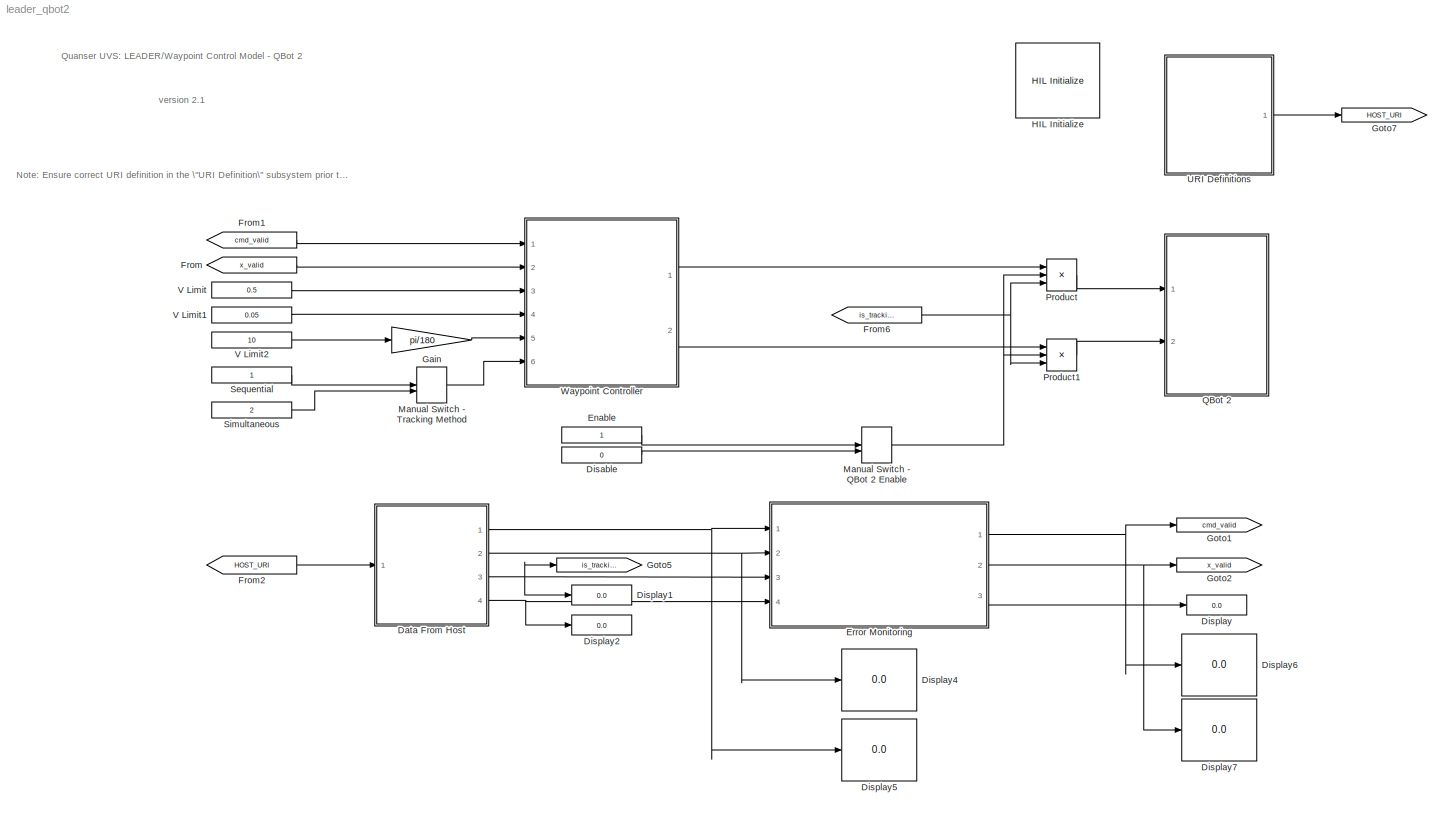
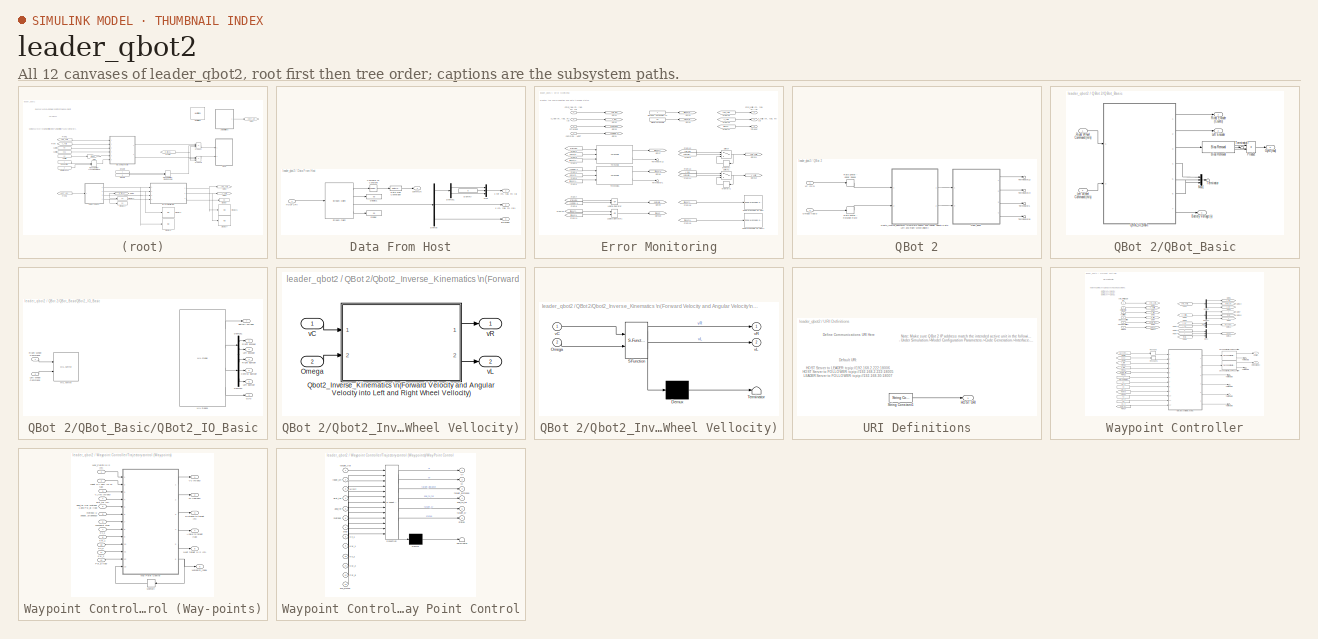
[diagram: thumbnail index - all 12 canvases of the model, root first then tree order]
MODEL leader_qbot2
KIND model
BLOCK [SubSystem] Data From Host
  Ports = [1, 4]
  RequestExecContextInheritance = off
  SID = 46
BLOCK [Reference] Data From Host/Compare To Constant  REF=simulink/Logic and Bit\nOperations/Compare\nTo Constant
  OutDataTypeStr = boolean
  Ports = [1, 1]
  SID = 379
  SourceBlock = simulink/Logic and Bit\nOperations/Compare\nTo Constant
  SourceType = Compare To Constant
  ZeroCross = on
  const = 2
  relop = <=
BLOCK [DataTypeConversion] Data From Host/Data Type Conversion
  RndMeth = Floor
  SID = 380
  SaturateOnIntegerOverflow = off
BLOCK [Demux] Data From Host/Demux
  DisplayOption = bar
  Outputs = [2 3 1]
  Ports = [1, 3]
  SID = 64
BLOCK [Demux] Data From Host/Demux1
  DisplayOption = bar
  Outputs = 2
  Ports = [1, 2]
  SID = 432
BLOCK [Display] Data From Host/Display
  Decimation = 100
  Ports = [1]
  SID = 62
BLOCK [Display] Data From Host/Display1
  Decimation = 100
  Ports = [1]
  SID = 63
BLOCK [Constant] Data From Host/Dummy
  SID = 434
  Value = 0
BLOCK [Inport] Data From Host/HOST URI
  IconDisplay = Port number
  SID = 60
BLOCK [Mux] Data From Host/Mux
  DisplayOption = bar
  Inputs = 3
  Ports = [3, 1]
  SID = 433
BLOCK [Reference] Data From Host/Stream Client  REF=quarc_library/Communications/Basic/Stream Client
  Ports = [1, 4]
  SID = 61
  SourceBlock = quarc_library/Communications/Basic/Stream Client
  SourceType = Stream Client
  active = off
  apply_uri_to_all_configs = on
  byte_order = little endian (Intel - LSB first)
  data_type = Inherited via back propagation
  default_value = zeros(6,1)
  implementation = Use non-blocking I/O
  max_dimensions = -1
  optimization = Minimum latency
  receive_buffer_size = 1460
  receive_dimensions = off
  receive_fifo_size = 1000
  receive_options = Receive most recent data
  receive_priority = 0
  sample_time = qc_get_step_size
  send_buffer_size = 1460
  send_dimensions = off
  send_fifo_size = 1000
  send_options = Do not send data
  send_priority = 0
  type_expr = BusObject
  uri = tcpip://182.168.2.222:18006
  uri_source = External input port
BLOCK [Outport] Data From Host/commOK
  IconDisplay = Port number
  Port = 4
  SID = 65
BLOCK [Outport] Data From Host/isTracking
  IconDisplay = Port number
  Port = 3
  SID = 50
BLOCK [Outport] Data From Host/x  ref (m, rad, m) [3]
  IconDisplay = Port number
  SID = 49
BLOCK [Outport] Data From Host/x (m, rad, m) [3]1
  IconDisplay = Port number
  Port = 2
  SID = 431
BLOCK [Constant] Disable
  SID = 220
  Value = 0
BLOCK [Display] Display
  Decimation = 100
  Ports = [1]
  SID = 230
BLOCK [Display] Display1
  Decimation = 100
  Ports = [1]
  SID = 231
BLOCK [Display] Display2
  Decimation = 100
  Ports = [1]
  SID = 232
BLOCK [Display] Display4
  Decimation = 100
  Ports = [1]
  SID = 381
BLOCK [Display] Display5
  Decimation = 100
  Ports = [1]
  SID = 382
BLOCK [Display] Display6
  Decimation = 100
  Ports = [1]
  SID = 383
BLOCK [Display] Display7
  Decimation = 100
  Ports = [1]
  SID = 384
BLOCK [Constant] Enable
  SID = 219
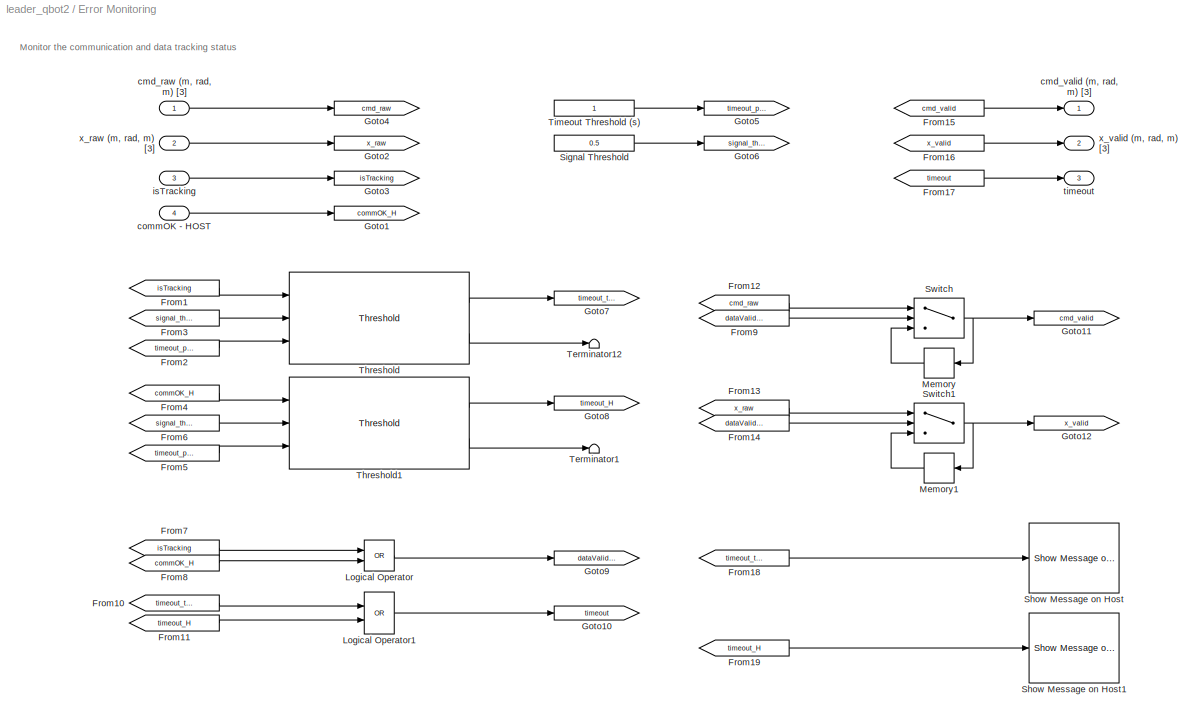
BLOCK [SubSystem] Error Monitoring
  Ports = [4, 3]
  RequestExecContextInheritance = off
  SID = 71
BLOCK [From] Error Monitoring/From1
  GotoTag = isTracking
  SID = 86
BLOCK [From] Error Monitoring/From10
  GotoTag = timeout_tracking
  SID = 109
BLOCK [From] Error Monitoring/From11
  GotoTag = timeout_H
  SID = 110
BLOCK [From] Error Monitoring/From12
  GotoTag = cmd_raw
  SID = 113
BLOCK [From] Error Monitoring/From13
  GotoTag = x_raw
  SID = 116
BLOCK [From] Error Monitoring/From14
  GotoTag = dataValid_H
  SID = 117
BLOCK [From] Error Monitoring/From15
  GotoTag = cmd_valid
  SID = 122
BLOCK [From] Error Monitoring/From16
  GotoTag = x_valid
  SID = 123
BLOCK [From] Error Monitoring/From17
  GotoTag = timeout
  SID = 224
BLOCK [From] Error Monitoring/From18
  GotoTag = timeout_tracking
  SID = 227
BLOCK [From] Error Monitoring/From19
  GotoTag = timeout_H
  SID = 228
BLOCK [From] Error Monitoring/From2
  GotoTag = timeout_period
  SID = 91
BLOCK [From] Error Monitoring/From3
  GotoTag = signal_threshold
  SID = 94
BLOCK [From] Error Monitoring/From4
  GotoTag = commOK_H
  SID = 95
BLOCK [From] Error Monitoring/From5
  GotoTag = timeout_period
  SID = 96
BLOCK [From] Error Monitoring/From6
  GotoTag = signal_threshold
  SID = 97
BLOCK [From] Error Monitoring/From7
  GotoTag = isTracking
  SID = 103
BLOCK [From] Error Monitoring/From8
  GotoTag = commOK_H
  SID = 104
BLOCK [From] Error Monitoring/From9
  GotoTag = dataValid_H
  SID = 108
BLOCK [Goto] Error Monitoring/Goto1
  GotoTag = commOK_H
  SID = 79
BLOCK [Goto] Error Monitoring/Goto10
  GotoTag = timeout
  SID = 111
BLOCK [Goto] Error Monitoring/Goto11
  GotoTag = cmd_valid
  SID = 120
BLOCK [Goto] Error Monitoring/Goto12
  GotoTag = x_valid
  SID = 121
BLOCK [Goto] Error Monitoring/Goto2
  GotoTag = x_raw
  SID = 80
BLOCK [Goto] Error Monitoring/Goto3
  GotoTag = isTracking
  SID = 78
BLOCK [Goto] Error Monitoring/Goto4
  GotoTag = cmd_raw
  SID = 81
BLOCK [Goto] Error Monitoring/Goto5
  GotoTag = timeout_period
  SID = 90
BLOCK [Goto] Error Monitoring/Goto6
  GotoTag = signal_threshold
  SID = 93
BLOCK [Goto] Error Monitoring/Goto7
  GotoTag = timeout_tracking
  SID = 100
BLOCK [Goto] Error Monitoring/Goto8
  GotoTag = timeout_H
  SID = 101
BLOCK [Goto] Error Monitoring/Goto9
  GotoTag = dataValid_H
  SID = 106
BLOCK [Logic] Error Monitoring/Logical Operator
  AllPortsSameDT = off
  Operator = OR
  OutDataTypeStr = boolean
  Ports = [2, 1]
  SID = 102
BLOCK [Logic] Error Monitoring/Logical Operator1
  AllPortsSameDT = off
  Operator = OR
  OutDataTypeStr = boolean
  Ports = [2, 1]
  SID = 112
BLOCK [Memory] Error Monitoring/Memory
  SID = 115
BLOCK [Memory] Error Monitoring/Memory1
  SID = 118
BLOCK [Reference] Error Monitoring/Show Message on Host  REF=quarc_library/Sinks/Error Handling/Show Message on Host
  AttributesFormatString = \"%<message>\"
  Ports = [1]
  SID = 226
  SourceBlock = quarc_library/Sinks/Error Handling/Show Message on Host
  SourceType = Host Show Message
  message = OptiTrack Not Tracking Markers!
  message_icon = Warning
  message_type = Fixed error message
BLOCK [Reference] Error Monitoring/Show Message on Host1  REF=quarc_library/Sinks/Error Handling/Show Message on Host
  AttributesFormatString = \"%<message>\"
  Ports = [1]
  SID = 229
  SourceBlock = quarc_library/Sinks/Error Handling/Show Message on Host
  SourceType = Host Show Message
  message = Host connection timeout detected!
  message_icon = Warning
  message_type = Fixed error message
BLOCK [Constant] Error Monitoring/Signal Threshold
  SID = 92
  Value = 0.5
BLOCK [Switch] Error Monitoring/Switch
  InputSameDT = off
  SID = 107
  SaturateOnIntegerOverflow = off
  Threshold = 0.5
BLOCK [Switch] Error Monitoring/Switch1
  InputSameDT = off
  SID = 119
  SaturateOnIntegerOverflow = off
  Threshold = 0.5
BLOCK [Terminator] Error Monitoring/Terminator1
  SID = 99
BLOCK [Terminator] Error Monitoring/Terminator12
  SID = 98
BLOCK [Reference] Error Monitoring/Threshold  REF=quarc_library/Discontinuities/Threshold
  Ports = [3, 2]
  SID = 85
  SourceBlock = quarc_library/Discontinuities/Threshold
  SourceType = Threshold
  duration = 0
  operator = <
  param_src = External input port
  threshold = 0
BLOCK [Reference] Error Monitoring/Threshold1  REF=quarc_library/Discontinuities/Threshold
  Ports = [3, 2]
  SID = 87
  SourceBlock = quarc_library/Discontinuities/Threshold
  SourceType = Threshold
  duration = 0
  operator = <
  param_src = External input port
  threshold = 0
BLOCK [Constant] Error Monitoring/Timeout Threshold (s)
  SID = 88
BLOCK [Inport] Error Monitoring/cmd_raw (m, rad, m) [3]
  IconDisplay = Port number
  SID = 72
BLOCK [Outport] Error Monitoring/cmd_valid (m, rad, m) [3]
  IconDisplay = Port number
  SID = 73
BLOCK [Inport] Error Monitoring/commOK - HOST
  IconDisplay = Port number
  Port = 4
  SID = 76
BLOCK [Inport] Error Monitoring/isTracking
  IconDisplay = Port number
  Port = 3
  SID = 75
BLOCK [Outport] Error Monitoring/timeout
  IconDisplay = Port number
  Port = 3
  SID = 225
BLOCK [Inport] Error Monitoring/x_raw (m, rad, m) [3]
  IconDisplay = Port number
  Port = 2
  SID = 74
BLOCK [Outport] Error Monitoring/x_valid (m, rad, m) [3]
  IconDisplay = Port number
  Port = 2
  SID = 77
BLOCK [From] From
  GotoTag = x_valid
  SID = 44
BLOCK [From] From1
  GotoTag = cmd_valid
  SID = 45
BLOCK [From] From2
  GotoTag = HOST_URI
  SID = 66
BLOCK [From] From6
  GotoTag = is_tracking
  SID = 387
BLOCK [Gain] Gain
  Gain = pi/180
  OutDataTypeStr = Inherit: Inherit via internal rule
  ParamDataTypeStr = Inherit: Inherit via internal rule
  SID = 214
  SaturateOnIntegerOverflow = off
BLOCK [Goto] Goto1
  GotoTag = cmd_valid
  SID = 82
BLOCK [Goto] Goto2
  GotoTag = x_valid
  SID = 83
BLOCK [Goto] Goto5
  GotoTag = is_tracking
  SID = 386
BLOCK [Goto] Goto7
  GotoTag = HOST_URI
  SID = 59
BLOCK [Reference] HIL Initialize  REF=quarc_library/Data Acquisition/Generic/Configuration/HIL Initialize
  AttributesFormatString = %<object_name> (%<board_type>-%<board_number>)
  Ports = []
  Priority = -99
  SID = 2
  SourceBlock = quarc_library/Data Acquisition/Generic/Configuration/HIL Initialize
  SourceType = HIL Initialize
  UserData = DataTag0
  UserDataPersistent = on
  active = off
  analog_input_channels = [0:9]
  analog_input_maximums = [5 5 5 5 16.5 3.3 3.3 3.3 3.3]
  analog_input_minimums = [0 0 0 0 0 0 0 0 0]
  analog_output_channels = []
  analog_output_maximums = []
  analog_output_minimums = []
  board_number = 0
  board_options = enc0_dir=0;enc0_filter=1;enc0_a=0;enc0_b=0;enc0_z=1;enc0_reload=0;enc1_dir=0;enc1_filter=1;enc1_a=0;enc1_b=0;enc1_z=1;enc1_reload=0;pwm0_immediate=0;pwm1_immediate=0;pwm2_immediate=0;pwm3_immediate=0;
  board_type = qbot2
  clock_modes = []
  digital_input_channels = []
  digital_output_channels = []
  digital_output_configuration = []
  encoder_channels = [0:3]
  encoder_filter_frequency = []
  exclusive = off
  final_analog_outputs = []
  final_digital_outputs = [0]
  final_other_outputs = [0 0 0 7]
  final_pwm_outputs = [0]
  hardware_clocks = []
  initial_analog_outputs = []
  initial_clock_frequencies = []
  initial_digital_outputs = [0]
  initial_encoder_counts = [0]
  initial_other_outputs = [0 0 0 7]
  initial_pwm_outputs = [0]
  object_name = HIL-1
  other_output_channels = [2000:2001 14000 16000]
  pwm_alignment = [0]
  pwm_channels = [0:3]
  pwm_configuration = [0]
  pwm_frequency = [20e6/1024]
  pwm_leading_deadband = [0]
  pwm_modes = [0]
  pwm_polarity = [1]
  pwm_trailing_deadband = [0]
  quadrature = [4]
  set_analog_input_params_at_start = off
  set_analog_input_params_at_switch_in = off
  set_analog_output_params_at_start = off
  set_analog_output_params_at_switch_in = off
  set_analog_outputs_at_start = off
  set_analog_outputs_at_switch_in = off
  set_analog_outputs_at_switch_out = off
  set_analog_outputs_at_terminate = off
  set_analog_outputs_on_watchdog = off
  set_clock_frequencies_at_start = off
  set_clock_frequencies_at_switch_in = off
  set_clock_params_at_start = off
  set_clock_params_at_switch_in = off
  set_digital_output_params_at_start = off
  set_digital_output_params_at_switch_in = off
  set_digital_outputs_at_start = on
  set_digital_outputs_at_switch_in = off
  set_digital_outputs_at_switch_out = off
  set_digital_outputs_at_terminate = on
  set_digital_outputs_on_watchdog = on
  set_encoder_counts_at_start = on
  set_encoder_counts_at_switch_in = off
  set_encoder_params_at_start = on
  set_encoder_params_at_switch_in = off
  set_other_outputs_at_start = on
  set_other_outputs_at_switch_in = off
  set_other_outputs_at_switch_out = off
  set_other_outputs_at_terminate = on
  set_other_outputs_on_watchdog = off
  set_pwm_outputs_at_start = on
  set_pwm_outputs_at_switch_in = off
  set_pwm_outputs_at_switch_out = off
  set_pwm_outputs_at_terminate = on
  set_pwm_outputs_on_watchdog = on
  set_pwm_params_at_start = on
  set_pwm_params_at_switch_in = off
  watchdog_analog_outputs = []
  watchdog_digital_outputs = [0]
  watchdog_other_outputs = []
  watchdog_pwm_outputs = [0]
BLOCK [ManualSwitch] Manual Switch - QBot 2 Enable
  SID = 217
BLOCK [ManualSwitch] Manual Switch - Tracking Method
  SID = 218
BLOCK [Product] Product
  InputSameDT = off
  Inputs = 3
  OutDataTypeStr = Inherit: Inherit via internal rule
  Ports = [3, 1]
  SID = 221
  SaturateOnIntegerOverflow = off
BLOCK [Product] Product1
  InputSameDT = off
  Inputs = 3
  OutDataTypeStr = Inherit: Inherit via internal rule
  Ports = [3, 1]
  SID = 222
  SaturateOnIntegerOverflow = off
BLOCK [SubSystem] QBot 2
  Ports = [2]
  RequestExecContextInheritance = off
  SID = 4
BLOCK [Inport] QBot 2/Omega (rad//s)
  IconDisplay = Port number
  Port = 2
  SID = 7
BLOCK [SubSystem] QBot 2/QBot_Basic
  Ports = [2, 4]
  RequestExecContextInheritance = off
  SID = 8
BLOCK [Outport] QBot 2/QBot_Basic/Battery Voltage (v)
  IconDisplay = Port number
  Port = 4
  SID = 33
BLOCK [Reference] QBot 2/QBot_Basic/Bias Removal  REF=quarc_library/Discrete/Bias Removal
  Ports = [1, 3]
  SID = 11
  SourceBlock = quarc_library/Discrete/Bias Removal
  SourceType = Bias Removal
  end_time = 4
  sample_time = qc_get_step_size
  start_time = 3
  switch_id = 0
BLOCK [Outport] QBot 2/QBot_Basic/Gyro (rad)
  IconDisplay = Port number
  Port = 3
  SID = 32
BLOCK [Outport] QBot 2/QBot_Basic/Left Encoder
  IconDisplay = Port number
  Port = 2
  SID = 31
BLOCK [Inport] QBot 2/QBot_Basic/Left Wheel Command (m//s)
  IconDisplay = Port number
  Port = 2
  SID = 10
BLOCK [Mux] QBot 2/QBot_Basic/Mux1
  DisplayOption = bar
  Inputs = 3
  Ports = [3, 1]
  SID = 12
BLOCK [Product] QBot 2/QBot_Basic/Product
  InputSameDT = off
  OutDataTypeStr = Inherit: Inherit via internal rule
  Ports = [2, 1]
  SID = 13
  SaturateOnIntegerOverflow = off
BLOCK [SubSystem] QBot 2/QBot_Basic/QBot2_IO_Basic
  Ports = [2, 7]
  RequestExecContextInheritance = off
  SID = 14
BLOCK [Outport] QBot 2/QBot_Basic/QBot2_IO_Basic/Battery Voltage
  IconDisplay = Port number
  Port = 7
  SID = 27
BLOCK [Outport] QBot 2/QBot_Basic/QBot2_IO_Basic/Central Bumper
  IconDisplay = Port number
  Port = 5
  SID = 25
BLOCK [Demux] QBot 2/QBot_Basic/QBot2_IO_Basic/Demux1
  DisplayOption = bar
  Outputs = 2
  Ports = [1, 2]
  SID = 17
BLOCK [Demux] QBot 2/QBot_Basic/QBot2_IO_Basic/Demux2
  DisplayOption = bar
  Outputs = 3
  Ports = [1, 3]
  SID = 18
BLOCK [Outport] QBot 2/QBot_Basic/QBot2_IO_Basic/Gyro
  IconDisplay = Port number
  Port = 3
  SID = 23
BLOCK [Reference] QBot 2/QBot_Basic/QBot2_IO_Basic/HIL Read1  REF=quarc_library/Data Acquisition/Generic/Immediate I//O/HIL Read
  AttributesFormatString = (%<object_name>)
  Ports = [0, 4]
  SID = 19
  SourceBlock = quarc_library/Data Acquisition/Generic/Immediate I//O/HIL Read
  SourceType = HIL Read
  UserData = DataTag1
  UserDataPersistent = on
  active = on
  analog_channels = [4]
  data_type_mode = Inherit via back propagation
  digital_channels = [8 9 10]
  digital_data_type = boolean
  encoder_channels = [2 3]
  encoder_data_type = double
  object_name = HIL-1
  other_channels = [1002]
  sample_time = qc_get_step_size
  vector_output = on
BLOCK [Reference] QBot 2/QBot_Basic/QBot2_IO_Basic/HIL Write  REF=quarc_library/Data Acquisition/Generic/Immediate I//O/HIL Write
  AttributesFormatString = (%<object_name>)
  Ports = [2]
  SID = 20
  SourceBlock = quarc_library/Data Acquisition/Generic/Immediate I//O/HIL Write
  SourceType = HIL Write
  UserData = DataTag2
  UserDataPersistent = on
  active = on
  analog_channels = []
  digital_channels = []
  object_name = HIL-1
  other_channels = [2000:2001]
  pwm_channels = []
  sample_time = -1
  vector_input = off
BLOCK [Outport] QBot 2/QBot_Basic/QBot2_IO_Basic/Left Bumper
  IconDisplay = Port number
  Port = 6
  SID = 26
BLOCK [Outport] QBot 2/QBot_Basic/QBot2_IO_Basic/Left Encoder
  IconDisplay = Port number
  Port = 2
  SID = 22
BLOCK [Inport] QBot 2/QBot_Basic/QBot2_IO_Basic/Left Wheel Command
  IconDisplay = Port number
  Port = 2
  SID = 16
BLOCK [Outport] QBot 2/QBot_Basic/QBot2_IO_Basic/Right Bumper
  IconDisplay = Port number
  Port = 4
  SID = 24
BLOCK [Outport] QBot 2/QBot_Basic/QBot2_IO_Basic/Right Encoder
  IconDisplay = Port number
  SID = 21
BLOCK [Inport] QBot 2/QBot_Basic/QBot2_IO_Basic/Right Wheel Command
  IconDisplay = Port number
  SID = 15
BLOCK [Outport] QBot 2/QBot_Basic/Right Encoder (Counts)
  IconDisplay = Port number
  SID = 30
BLOCK [Inport] QBot 2/QBot_Basic/Right Wheel Command (m//s)
  IconDisplay = Port number
  SID = 9
BLOCK [Terminator] QBot 2/QBot_Basic/Terminator
  SID = 28
BLOCK [Terminator] QBot 2/QBot_Basic/Terminator7
  SID = 29
BLOCK [SubSystem] QBot 2/Qbot2_Inverse_Kinematics \n(Forward Velocity and Angular Velocity\n into Left and Right Wheel Vellocity)
  Ports = [2, 2]
  RequestExecContextInheritance = off
  SID = 34
BLOCK [Inport] QBot 2/Qbot2_Inverse_Kinematics \n(Forward Velocity and Angular Velocity\n into Left and Right Wheel Vellocity)/Omega
  IconDisplay = Port number
  Port = 2
  SID = 36
BLOCK [SubSystem] QBot 2/Qbot2_Inverse_Kinematics \n(Forward Velocity and Angular Velocity\n into Left and Right Wheel Vellocity)/Qbot2_Inverse_Kinematics \n(Forward Velocity and Angular Velocity into Left and Right Wheel Vellocity)
  ErrorFcn = Stateflow.Translate.translate
  PermitHierarchicalResolution = ExplicitOnly
  Ports = [2, 2]
  RequestExecContextInheritance = off
  SFBlockType = MATLAB Function
  SID = 37
  TreatAsAtomicUnit = on
BLOCK [Demux] QBot 2/Qbot2_Inverse_Kinematics \n(Forward Velocity and Angular Velocity\n into Left and Right Wheel Vellocity)/Qbot2_Inverse_Kinematics \n(Forward Velocity and Angular Velocity into Left and Right Wheel Vellocity)/ Demux 
  Outputs = 1
  Ports = [1, 1]
  SID = 37::452
BLOCK [S-Function] QBot 2/Qbot2_Inverse_Kinematics \n(Forward Velocity and Angular Velocity\n into Left and Right Wheel Vellocity)/Qbot2_Inverse_Kinematics \n(Forward Velocity and Angular Velocity into Left and Right Wheel Vellocity)/ SFunction 
  EnableBusSupport = on
  FunctionName = sf_sfun
  PortCounts = [2 3]
  Ports = [2, 3]
  SID = 37::451
  Tag = Stateflow S-Function leader_qbot2 1
BLOCK [Terminator] QBot 2/Qbot2_Inverse_Kinematics \n(Forward Velocity and Angular Velocity\n into Left and Right Wheel Vellocity)/Qbot2_Inverse_Kinematics \n(Forward Velocity and Angular Velocity into Left and Right Wheel Vellocity)/ Terminator 
  SID = 37::453
BLOCK [Inport] QBot 2/Qbot2_Inverse_Kinematics \n(Forward Velocity and Angular Velocity\n into Left and Right Wheel Vellocity)/Qbot2_Inverse_Kinematics \n(Forward Velocity and Angular Velocity into Left and Right Wheel Vellocity)/Omega
  IconDisplay = Port number
  Port = 2
  SID = 37::23
BLOCK [Inport] QBot 2/Qbot2_Inverse_Kinematics \n(Forward Velocity and Angular Velocity\n into Left and Right Wheel Vellocity)/Qbot2_Inverse_Kinematics \n(Forward Velocity and Angular Velocity into Left and Right Wheel Vellocity)/vC
  IconDisplay = Port number
  SID = 37::20
BLOCK [Outport] QBot 2/Qbot2_Inverse_Kinematics \n(Forward Velocity and Angular Velocity\n into Left and Right Wheel Vellocity)/Qbot2_Inverse_Kinematics \n(Forward Velocity and Angular Velocity into Left and Right Wheel Vellocity)/vL
  IconDisplay = Port number
  Port = 2
  SID = 37::22
BLOCK [Outport] QBot 2/Qbot2_Inverse_Kinematics \n(Forward Velocity and Angular Velocity\n into Left and Right Wheel Vellocity)/Qbot2_Inverse_Kinematics \n(Forward Velocity and Angular Velocity into Left and Right Wheel Vellocity)/vR
  IconDisplay = Port number
  SID = 37::21
BLOCK [Inport] QBot 2/Qbot2_Inverse_Kinematics \n(Forward Velocity and Angular Velocity\n into Left and Right Wheel Vellocity)/vC
  IconDisplay = Port number
  SID = 35
BLOCK [Outport] QBot 2/Qbot2_Inverse_Kinematics \n(Forward Velocity and Angular Velocity\n into Left and Right Wheel Vellocity)/vL
  IconDisplay = Port number
  Port = 2
  SID = 39
BLOCK [Outport] QBot 2/Qbot2_Inverse_Kinematics \n(Forward Velocity and Angular Velocity\n into Left and Right Wheel Vellocity)/vR
  IconDisplay = Port number
  SID = 38
BLOCK [RateLimiter] QBot 2/Rate Limiter - Linear Speed
  SID = 449
  SampleTimeMode = inherited
BLOCK [RateLimiter] QBot 2/Rate Limiter - Rotation Rate
  SID = 450
  SampleTimeMode = inherited
BLOCK [Terminator] QBot 2/Terminator1
  SID = 223
BLOCK [Terminator] QBot 2/Terminator12
  SID = 40
BLOCK [Terminator] QBot 2/Terminator14
  SID = 41
BLOCK [Terminator] QBot 2/Terminator15
  SID = 42
BLOCK [Inport] QBot 2/vC (m//2)
  IconDisplay = Port number
  SID = 5
BLOCK [Constant] Sequential
  SID = 215
BLOCK [Constant] Simultaneous
  SID = 216
  Value = 2
BLOCK [SubSystem] URI Definitions
  Ports = [0, 1]
  RequestExecContextInheritance = off
  SID = 51
BLOCK [Outport] URI Definitions/HOST URI
  IconDisplay = Port number
  SID = 53
BLOCK [Reference] URI Definitions/String Constant1  REF=quarc_library/Strings/String Constant
  AttributesFormatString = \"tcpip://192.168.2.10:18006\"
  Ports = [0, 1]
  SID = 55
  SourceBlock = quarc_library/Strings/String Constant
  SourceType = String Constant
  evaluate_string = off
  max_length = 80
  sample_time = inf
  string_type = text
  string_value = tcpip://192.168.2.10:18006
  variable_size = off
BLOCK [Constant] V Limit
  SID = 211
  Value = 0.5
BLOCK [Constant] V Limit1
  SID = 212
  Value = 0.05
BLOCK [Constant] V Limit2
  SID = 213
  Value = 10
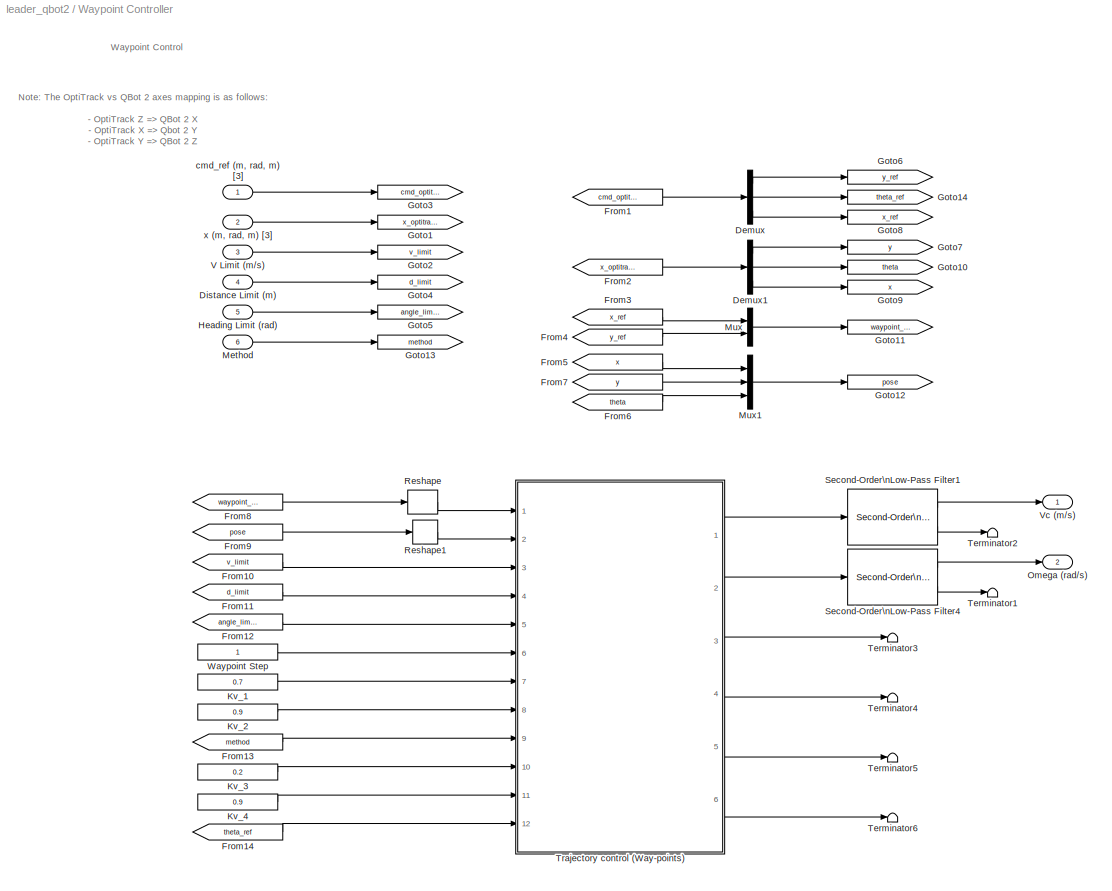
BLOCK [SubSystem] Waypoint Controller
  Ports = [6, 2]
  RequestExecContextInheritance = off
  SID = 297
BLOCK [Demux] Waypoint Controller/Demux
  DisplayOption = bar
  Outputs = 3
  Ports = [1, 3]
  SID = 304
BLOCK [Demux] Waypoint Controller/Demux1
  DisplayOption = bar
  Outputs = 3
  Ports = [1, 3]
  SID = 305
BLOCK [Inport] Waypoint Controller/Distance Limit (m)
  IconDisplay = Port number
  Port = 4
  SID = 301
BLOCK [From] Waypoint Controller/From1
  GotoTag = cmd_optitrack
  SID = 306
BLOCK [From] Waypoint Controller/From10
  GotoTag = v_limit
  SID = 307
BLOCK [From] Waypoint Controller/From11
  GotoTag = d_limit
  SID = 308
BLOCK [From] Waypoint Controller/From12
  GotoTag = angle_limit
  SID = 309
BLOCK [From] Waypoint Controller/From13
  GotoTag = method
  SID = 310
BLOCK [From] Waypoint Controller/From14
  GotoTag = theta_ref
  SID = 311
BLOCK [From] Waypoint Controller/From2
  GotoTag = x_optitrack
  SID = 312
BLOCK [From] Waypoint Controller/From3
  GotoTag = x_ref
  SID = 313
BLOCK [From] Waypoint Controller/From4
  GotoTag = y_ref
  SID = 314
BLOCK [From] Waypoint Controller/From5
  GotoTag = x
  SID = 315
BLOCK [From] Waypoint Controller/From6
  GotoTag = theta
  SID = 316
BLOCK [From] Waypoint Controller/From7
  GotoTag = y
  SID = 317
BLOCK [From] Waypoint Controller/From8
  GotoTag = waypoint_ref
  SID = 318
BLOCK [From] Waypoint Controller/From9
  GotoTag = pose
  SID = 319
BLOCK [Goto] Waypoint Controller/Goto1
  GotoTag = x_optitrack
  SID = 320
BLOCK [Goto] Waypoint Controller/Goto10
  GotoTag = theta
  SID = 321
BLOCK [Goto] Waypoint Controller/Goto11
  GotoTag = waypoint_ref
  SID = 322
BLOCK [Goto] Waypoint Controller/Goto12
  GotoTag = pose
  SID = 323
BLOCK [Goto] Waypoint Controller/Goto13
  GotoTag = method
  SID = 324
BLOCK [Goto] Waypoint Controller/Goto14
  GotoTag = theta_ref
  SID = 325
BLOCK [Goto] Waypoint Controller/Goto2
  GotoTag = v_limit
  SID = 326
BLOCK [Goto] Waypoint Controller/Goto3
  GotoTag = cmd_optitrack
  SID = 327
BLOCK [Goto] Waypoint Controller/Goto4
  GotoTag = d_limit
  SID = 328
BLOCK [Goto] Waypoint Controller/Goto5
  GotoTag = angle_limit
  SID = 329
BLOCK [Goto] Waypoint Controller/Goto6
  GotoTag = y_ref
  SID = 330
BLOCK [Goto] Waypoint Controller/Goto7
  GotoTag = y
  SID = 331
BLOCK [Goto] Waypoint Controller/Goto8
  GotoTag = x_ref
  SID = 332
BLOCK [Goto] Waypoint Controller/Goto9
  GotoTag = x
  SID = 333
BLOCK [Inport] Waypoint Controller/Heading Limit (rad)
  IconDisplay = Port number
  Port = 5
  SID = 302
BLOCK [Constant] Waypoint Controller/Kv_1
  SID = 334
  Value = 0.7
BLOCK [Constant] Waypoint Controller/Kv_2
  SID = 335
  Value = 0.9
BLOCK [Constant] Waypoint Controller/Kv_3
  SID = 336
  Value = 0.2
BLOCK [Constant] Waypoint Controller/Kv_4
  SID = 337
  Value = 0.9
BLOCK [Inport] Waypoint Controller/Method
  IconDisplay = Port number
  Port = 6
  SID = 303
BLOCK [Mux] Waypoint Controller/Mux
  DisplayOption = bar
  Inputs = 2
  Ports = [2, 1]
  SID = 338
BLOCK [Mux] Waypoint Controller/Mux1
  DisplayOption = bar
  Inputs = 3
  Ports = [3, 1]
  SID = 339
BLOCK [Outport] Waypoint Controller/Omega (rad//s)
  IconDisplay = Port number
  Port = 2
  SID = 373
BLOCK [Reshape] Waypoint Controller/Reshape
  OutputDimensionality = Row vector (2-D)
  Ports = [1, 1]
  SID = 340
BLOCK [Reshape] Waypoint Controller/Reshape1
  OutputDimensionality = Column vector (2-D)
  Ports = [1, 1]
  SID = 341
BLOCK [Reference] Waypoint Controller/Second-Order\nLow-Pass Filter1  REF=quarc_library/Continuous/Second-Order\nLow-Pass Filter
  Ports = [1, 2]
  SID = 342
  SourceBlock = quarc_library/Continuous/Second-Order\nLow-Pass Filter
  SourceType = Second-Order Low-Pass Filter
  input_init = 0
  input_width = 30
  input_zeta = 1
  params_source = Internal (dialog parameters)
BLOCK [Reference] Waypoint Controller/Second-Order\nLow-Pass Filter4  REF=quarc_library/Continuous/Second-Order\nLow-Pass Filter
  Ports = [1, 2]
  SID = 343
  SourceBlock = quarc_library/Continuous/Second-Order\nLow-Pass Filter
  SourceType = Second-Order Low-Pass Filter
  input_init = 0
  input_width = 60
  input_zeta = 1
  params_source = Internal (dialog parameters)
BLOCK [Terminator] Waypoint Controller/Terminator1
  SID = 344
BLOCK [Terminator] Waypoint Controller/Terminator2
  SID = 345
BLOCK [Terminator] Waypoint Controller/Terminator3
  SID = 346
BLOCK [Terminator] Waypoint Controller/Terminator4
  SID = 347
BLOCK [Terminator] Waypoint Controller/Terminator5
  SID = 348
BLOCK [Terminator] Waypoint Controller/Terminator6
  SID = 349
BLOCK [SubSystem] Waypoint Controller/Trajectory control (Way-points)
  Ports = [12, 6]
  RequestExecContextInheritance = off
  SID = 350
BLOCK [Outport] Waypoint Controller/Trajectory control (Way-points)/Angle to target (rad)
  IconDisplay = Port number
  Port = 4
  SID = 368
BLOCK [Outport] Waypoint Controller/Trajectory control (Way-points)/Distance to target (m)
  IconDisplay = Port number
  Port = 3
  SID = 367
BLOCK [Inport] Waypoint Controller/Trajectory control (Way-points)/Kv_1
  IconDisplay = Port number
  Port = 7
  SID = 357
BLOCK [Inport] Waypoint Controller/Trajectory control (Way-points)/Kv_2
  IconDisplay = Port number
  Port = 10
  SID = 360
BLOCK [Inport] Waypoint Controller/Trajectory control (Way-points)/Kw_1
  IconDisplay = Port number
  Port = 8
  SID = 358
BLOCK [Inport] Waypoint Controller/Trajectory control (Way-points)/Kw_2
  IconDisplay = Port number
  Port = 11
  SID = 361
BLOCK [Memory] Waypoint Controller/Trajectory control (Way-points)/Memory
  SID = 363
  X0 = [0]
BLOCK [Outport] Waypoint Controller/Trajectory control (Way-points)/Next target [x y] (m)
  IconDisplay = Port number
  Port = 5
  SID = 369
BLOCK [Inport] Waypoint Controller/Trajectory control (Way-points)/Psi_d (rad)
  IconDisplay = Port number
  Port = 12
  SID = 362
BLOCK [Inport] Waypoint Controller/Trajectory control (Way-points)/V_lim (m//sec)
  IconDisplay = Port number
  Port = 3
  SID = 353
BLOCK [Outport] Waypoint Controller/Trajectory control (Way-points)/Vc (m//sec)
  IconDisplay = Port number
  SID = 365
BLOCK [Outport] Waypoint Controller/Trajectory control (Way-points)/W (rad//sec)
  IconDisplay = Port number
  Port = 2
  SID = 366
BLOCK [SubSystem] Waypoint Controller/Trajectory control (Way-points)/Way Point Control
  ErrorFcn = Stateflow.Translate.translate
  PermitHierarchicalResolution = ExplicitOnly
  Ports = [13, 6]
  RequestExecContextInheritance = off
  SFBlockType = MATLAB Function
  SID = 364
  TreatAsAtomicUnit = on
BLOCK [Demux] Waypoint Controller/Trajectory control (Way-points)/Way Point Control/ Demux 
  Outputs = 1
  Ports = [1, 1]
  SID = 364::452
BLOCK [S-Function] Waypoint Controller/Trajectory control (Way-points)/Way Point Control/ SFunction 
  EnableBusSupport = on
  FunctionName = sf_sfun
  PortCounts = [13 7]
  Ports = [13, 7]
  SID = 364::451
  Tag = Stateflow S-Function leader_qbot2 4
BLOCK [Terminator] Waypoint Controller/Trajectory control (Way-points)/Way Point Control/ Terminator 
  SID = 364::453
BLOCK [Inport] Waypoint Controller/Trajectory control (Way-points)/Way Point Control/Kv_1
  IconDisplay = Port number
  Port = 8
  SID = 364::4
BLOCK [Inport] Waypoint Controller/Trajectory control (Way-points)/Way Point Control/Kv_2
  IconDisplay = Port number
  Port = 10
  SID = 364::28
BLOCK [Inport] Waypoint Controller/Trajectory control (Way-points)/Way Point Control/Kw_1
  IconDisplay = Port number
  Port = 9
  SID = 364::25
BLOCK [Inport] Waypoint Controller/Trajectory control (Way-points)/Way Point Control/Kw_2
  IconDisplay = Port number
  Port = 11
  SID = 364::29
BLOCK [Inport] Waypoint Controller/Trajectory control (Way-points)/Way Point Control/Psi_d
  IconDisplay = Port number
  Port = 12
  SID = 364::30
BLOCK [Outport] Waypoint Controller/Trajectory control (Way-points)/Way Point Control/Vf
  IconDisplay = Port number
  SID = 364::13
BLOCK [Outport] Waypoint Controller/Trajectory control (Way-points)/Way Point Control/W
  IconDisplay = Port number
  Port = 2
  SID = 364::14
BLOCK [Inport] Waypoint Controller/Trajectory control (Way-points)/Way Point Control/ang_thr
  IconDisplay = Port number
  Port = 5
  SID = 364::6
BLOCK [Outport] Waypoint Controller/Trajectory control (Way-points)/Way Point Control/ang_to_tar
  IconDisplay = Port number
  Port = 4
  SID = 364::26
BLOCK [Inport] Waypoint Controller/Trajectory control (Way-points)/Way Point Control/dist_thr
  IconDisplay = Port number
  Port = 4
  SID = 364::5
BLOCK [Inport] Waypoint Controller/Trajectory control (Way-points)/Way Point Control/method
  IconDisplay = Port number
  Port = 6
  SID = 364::7
BLOCK [Inport] Waypoint Controller/Trajectory control (Way-points)/Way Point Control/pre_states
  IconDisplay = Port number
  Port = 13
  SID = 364::9
BLOCK [Inport] Waypoint Controller/Trajectory control (Way-points)/Way Point Control/robot_xyt
  IconDisplay = Port number
  Port = 2
  SID = 364::2
BLOCK [Outport] Waypoint Controller/Trajectory control (Way-points)/Way Point Control/states
  IconDisplay = Port number
  Port = 6
  SID = 364::16
BLOCK [Inport] Waypoint Controller/Trajectory control (Way-points)/Way Point Control/step
  IconDisplay = Port number
  Port = 7
  SID = 364::8
BLOCK [Outport] Waypoint Controller/Trajectory control (Way-points)/Way Point Control/target_distance
  IconDisplay = Port number
  Port = 3
  SID = 364::15
BLOCK [Inport] Waypoint Controller/Trajectory control (Way-points)/Way Point Control/target_list
  IconDisplay = Port number
  SID = 364::1
BLOCK [Outport] Waypoint Controller/Trajectory control (Way-points)/Way Point Control/target_xy
  IconDisplay = Port number
  Port = 5
  SID = 364::27
BLOCK [Inport] Waypoint Controller/Trajectory control (Way-points)/Way Point Control/vlimit
  IconDisplay = Port number
  Port = 3
  SID = 364::3
BLOCK [Inport] Waypoint Controller/Trajectory control (Way-points)/Way_Points [x y] (m)
  IconDisplay = Port number
  SID = 351
BLOCK [Inport] Waypoint Controller/Trajectory control (Way-points)/Waypoint step
  IconDisplay = Port number
  Port = 6
  SID = 356
BLOCK [Outport] Waypoint Controller/Trajectory control (Way-points)/Waypoint_index
  IconDisplay = Port number
  Port = 6
  SID = 370
BLOCK [Inport] Waypoint Controller/Trajectory control (Way-points)/ang_thr [for method 1 and Psi_d]  (rad)
  IconDisplay = Port number
  Port = 5
  SID = 355
BLOCK [Inport] Waypoint Controller/Trajectory control (Way-points)/dist_thr (m)
  IconDisplay = Port number
  Port = 4
  SID = 354
BLOCK [Inport] Waypoint Controller/Trajectory control (Way-points)/method (1: sequential, 2: simultaneous)
  IconDisplay = Port number
  Port = 9
  SID = 359
BLOCK [Inport] Waypoint Controller/Trajectory control (Way-points)/robot [x y psi] (m m rad)
  IconDisplay = Port number
  Port = 2
  SID = 352
BLOCK [Inport] Waypoint Controller/V Limit (m//s)
  IconDisplay = Port number
  Port = 3
  SID = 300
BLOCK [Outport] Waypoint Controller/Vc (m//s)
  IconDisplay = Port number
  SID = 372
BLOCK [Constant] Waypoint Controller/Waypoint Step
  SID = 371
BLOCK [Inport] Waypoint Controller/cmd_ref (m, rad, m) [3]
  IconDisplay = Port number
  SID = 298
BLOCK [Inport] Waypoint Controller/x (m, rad, m) [3]
  IconDisplay = Port number
  Port = 2
  SID = 299
ANNOTATION (root): Note: Ensure correct URI definition in the \"URI Definition\" subsystem prior to running this model!!!
ANNOTATION (root): Quanser UVS: LEADER/Waypoint Control Model - QBot 2
ANNOTATION (root): version 2.1
ANNOTATION Error Monitoring: Monitor the communication and data tracking status
ANNOTATION URI Definitions: Default URI:\n\nHOST Server to LEADER: tcpip://192.168.2.222:18006\nHOST Server to FOLLOWER: tcpip://192.168.2.222:18005\nLEADER Server to FOLLOWER: tcpip://192.168.30:18007\n\nLeader/Waypoint Control Model URI: tcpip://192.168.2.22:17001?nagle=no,keep_alive=1\nFollower Model URI: tcpip://192.168.2.23:17001?nagle=no,keep_alive=1
ANNOTATION URI Definitions: Define Communications URI Here
ANNOTATION URI Definitions: Note: Make sure QBot 2 IP address match the intended active unit in the following places:\n- Under Simulation->Model Configuration Parameters->Code Generation->Interface->MEX-file arguments
ANNOTATION Waypoint Controller: Note: The OptiTrack vs QBot 2 axes mapping is as follows:\n\n- OptiTrack Z => QBot 2 X\n- OptiTrack X => Qbot 2 Y\n- OptiTrack Y => QBot 2 Z
ANNOTATION Waypoint Controller: Waypoint Control
LINE Data From Host/Compare To Constant:1 -> Data From Host/Data Type Conversion:1
LINE Data From Host/Data Type Conversion:1 -> Data From Host/commOK:1
LINE Data From Host/Demux1:1 -> Data From Host/Mux:1
LINE Data From Host/Demux1:2 -> Data From Host/Mux:3
LINE Data From Host/Demux:1 -> Data From Host/Demux1:1
LINE Data From Host/Demux:2 -> Data From Host/x (m, rad, m) [3]1:1
LINE Data From Host/Demux:3 -> Data From Host/isTracking:1
LINE Data From Host/Dummy:1 -> Data From Host/Mux:2
LINE Data From Host/HOST URI:1 -> Data From Host/Stream Client:1
LINE Data From Host/Mux:1 -> Data From Host/x  ref (m, rad, m) [3]:1
LINE Data From Host/Stream Client:1 -> Data From Host/Compare To Constant:1
LINE Data From Host/Stream Client:2 -> Data From Host/Display1:1
LINE Data From Host/Stream Client:3 -> Data From Host/Demux:1
LINE Data From Host/Stream Client:4 -> Data From Host/Display:1
NET Data From Host:1 -> Display5:1, Error Monitoring:1
NET Data From Host:2 -> Display4:1, Error Monitoring:2
NET Data From Host:3 -> Display1:1, Error Monitoring:3, Goto5:1
NET Data From Host:4 -> Display2:1, Error Monitoring:4
LINE Disable:1 -> Manual Switch - QBot 2 Enable:2
LINE Enable:1 -> Manual Switch - QBot 2 Enable:1
LINE Error Monitoring/From10:1 -> Error Monitoring/Logical Operator1:1
LINE Error Monitoring/From11:1 -> Error Monitoring/Logical Operator1:2
LINE Error Monitoring/From12:1 -> Error Monitoring/Switch:1
LINE Error Monitoring/From13:1 -> Error Monitoring/Switch1:1
LINE Error Monitoring/From14:1 -> Error Monitoring/Switch1:2
LINE Error Monitoring/From15:1 -> Error Monitoring/cmd_valid (m, rad, m) [3]:1
LINE Error Monitoring/From16:1 -> Error Monitoring/x_valid (m, rad, m) [3]:1
LINE Error Monitoring/From17:1 -> Error Monitoring/timeout:1
LINE Error Monitoring/From18:1 -> Error Monitoring/Show Message on Host:1
LINE Error Monitoring/From19:1 -> Error Monitoring/Show Message on Host1:1
LINE Error Monitoring/From1:1 -> Error Monitoring/Threshold:1
LINE Error Monitoring/From2:1 -> Error Monitoring/Threshold:3
LINE Error Monitoring/From3:1 -> Error Monitoring/Threshold:2
LINE Error Monitoring/From4:1 -> Error Monitoring/Threshold1:1
LINE Error Monitoring/From5:1 -> Error Monitoring/Threshold1:3
LINE Error Monitoring/From6:1 -> Error Monitoring/Threshold1:2
LINE Error Monitoring/From7:1 -> Error Monitoring/Logical Operator:1
LINE Error Monitoring/From8:1 -> Error Monitoring/Logical Operator:2
LINE Error Monitoring/From9:1 -> Error Monitoring/Switch:2
LINE Error Monitoring/Logical Operator1:1 -> Error Monitoring/Goto10:1
LINE Error Monitoring/Logical Operator:1 -> Error Monitoring/Goto9:1
LINE Error Monitoring/Memory1:1 -> Error Monitoring/Switch1:3
LINE Error Monitoring/Memory:1 -> Error Monitoring/Switch:3
LINE Error Monitoring/Signal Threshold:1 -> Error Monitoring/Goto6:1
NET Error Monitoring/Switch1:1 -> Error Monitoring/Goto12:1, Error Monitoring/Memory1:1
NET Error Monitoring/Switch:1 -> Error Monitoring/Goto11:1, Error Monitoring/Memory:1
LINE Error Monitoring/Threshold1:1 -> Error Monitoring/Goto8:1
LINE Error Monitoring/Threshold1:2 -> Error Monitoring/Terminator1:1
LINE Error Monitoring/Threshold:1 -> Error Monitoring/Goto7:1
LINE Error Monitoring/Threshold:2 -> Error Monitoring/Terminator12:1
LINE Error Monitoring/Timeout Threshold (s):1 -> Error Monitoring/Goto5:1
LINE Error Monitoring/cmd_raw (m, rad, m) [3]:1 -> Error Monitoring/Goto4:1
LINE Error Monitoring/commOK - HOST:1 -> Error Monitoring/Goto1:1
LINE Error Monitoring/isTracking:1 -> Error Monitoring/Goto3:1
LINE Error Monitoring/x_raw (m, rad, m) [3]:1 -> Error Monitoring/Goto2:1
NET Error Monitoring:1 -> Display6:1, Goto1:1
NET Error Monitoring:2 -> Display7:1, Goto2:1
LINE Error Monitoring:3 -> Display:1
LINE From1:1 -> Waypoint Controller:1
LINE From2:1 -> Data From Host:1
NET From6:1 -> Product1:3, Product:3
LINE From:1 -> Waypoint Controller:2
LINE Gain:1 -> Waypoint Controller:5
NET Manual Switch - QBot 2 Enable:1 -> Product1:2, Product:2
LINE Manual Switch - Tracking Method:1 -> Waypoint Controller:6
LINE Product1:1 -> QBot 2:2
LINE Product:1 -> QBot 2:1
LINE QBot 2/Omega (rad//s):1 -> QBot 2/Rate Limiter - Rotation Rate:1
LINE QBot 2/QBot_Basic/Bias Removal:1 -> QBot 2/QBot_Basic/Product:1
LINE QBot 2/QBot_Basic/Bias Removal:2 -> QBot 2/QBot_Basic/Terminator7:1
LINE QBot 2/QBot_Basic/Bias Removal:3 -> QBot 2/QBot_Basic/Product:2
LINE QBot 2/QBot_Basic/Left Wheel Command (m//s):1 -> QBot 2/QBot_Basic/QBot2_IO_Basic:2
LINE QBot 2/QBot_Basic/Mux1:1 -> QBot 2/QBot_Basic/Terminator:1
LINE QBot 2/QBot_Basic/Product:1 -> QBot 2/QBot_Basic/Gyro (rad):1
LINE QBot 2/QBot_Basic/QBot2_IO_Basic/Demux1:1 -> QBot 2/QBot_Basic/QBot2_IO_Basic/Right Encoder:1
LINE QBot 2/QBot_Basic/QBot2_IO_Basic/Demux1:2 -> QBot 2/QBot_Basic/QBot2_IO_Basic/Left Encoder:1
LINE QBot 2/QBot_Basic/QBot2_IO_Basic/Demux2:1 -> QBot 2/QBot_Basic/QBot2_IO_Basic/Right Bumper:1
LINE QBot 2/QBot_Basic/QBot2_IO_Basic/Demux2:2 -> QBot 2/QBot_Basic/QBot2_IO_Basic/Central Bumper:1
LINE QBot 2/QBot_Basic/QBot2_IO_Basic/Demux2:3 -> QBot 2/QBot_Basic/QBot2_IO_Basic/Left Bumper:1
LINE QBot 2/QBot_Basic/QBot2_IO_Basic/HIL Read1:1 -> QBot 2/QBot_Basic/QBot2_IO_Basic/Battery Voltage:1
LINE QBot 2/QBot_Basic/QBot2_IO_Basic/HIL Read1:2 -> QBot 2/QBot_Basic/QBot2_IO_Basic/Demux1:1
LINE QBot 2/QBot_Basic/QBot2_IO_Basic/HIL Read1:3 -> QBot 2/QBot_Basic/QBot2_IO_Basic/Demux2:1
LINE QBot 2/QBot_Basic/QBot2_IO_Basic/HIL Read1:4 -> QBot 2/QBot_Basic/QBot2_IO_Basic/Gyro:1
LINE QBot 2/QBot_Basic/QBot2_IO_Basic/Left Wheel Command:1 -> QBot 2/QBot_Basic/QBot2_IO_Basic/HIL Write:2
LINE QBot 2/QBot_Basic/QBot2_IO_Basic/Right Wheel Command:1 -> QBot 2/QBot_Basic/QBot2_IO_Basic/HIL Write:1
LINE QBot 2/QBot_Basic/QBot2_IO_Basic:1 -> QBot 2/QBot_Basic/Right Encoder (Counts):1
LINE QBot 2/QBot_Basic/QBot2_IO_Basic:2 -> QBot 2/QBot_Basic/Left Encoder:1
LINE QBot 2/QBot_Basic/QBot2_IO_Basic:3 -> QBot 2/QBot_Basic/Bias Removal:1
LINE QBot 2/QBot_Basic/QBot2_IO_Basic:4 -> QBot 2/QBot_Basic/Mux1:1
LINE QBot 2/QBot_Basic/QBot2_IO_Basic:5 -> QBot 2/QBot_Basic/Mux1:2
LINE QBot 2/QBot_Basic/QBot2_IO_Basic:6 -> QBot 2/QBot_Basic/Mux1:3
LINE QBot 2/QBot_Basic/QBot2_IO_Basic:7 -> QBot 2/QBot_Basic/Battery Voltage (v):1
LINE QBot 2/QBot_Basic/Right Wheel Command (m//s):1 -> QBot 2/QBot_Basic/QBot2_IO_Basic:1
LINE QBot 2/QBot_Basic:1 -> QBot 2/Terminator12:1
LINE QBot 2/QBot_Basic:2 -> QBot 2/Terminator14:1
LINE QBot 2/QBot_Basic:3 -> QBot 2/Terminator1:1
LINE QBot 2/QBot_Basic:4 -> QBot 2/Terminator15:1
LINE QBot 2/Qbot2_Inverse_Kinematics \n(Forward Velocity and Angular Velocity\n into Left and Right Wheel Vellocity)/Omega:1 -> QBot 2/Qbot2_Inverse_Kinematics \n(Forward Velocity and Angular Velocity\n into Left and Right Wheel Vellocity)/Qbot2_Inverse_Kinematics \n(Forward Velocity and Angular Velocity into Left and Right Wheel Vellocity):2
LINE QBot 2/Qbot2_Inverse_Kinematics \n(Forward Velocity and Angular Velocity\n into Left and Right Wheel Vellocity)/Qbot2_Inverse_Kinematics \n(Forward Velocity and Angular Velocity into Left and Right Wheel Vellocity)/ Demux :1 -> QBot 2/Qbot2_Inverse_Kinematics \n(Forward Velocity and Angular Velocity\n into Left and Right Wheel Vellocity)/Qbot2_Inverse_Kinematics \n(Forward Velocity and Angular Velocity into Left and Right Wheel Vellocity)/ Terminator :1
LINE QBot 2/Qbot2_Inverse_Kinematics \n(Forward Velocity and Angular Velocity\n into Left and Right Wheel Vellocity)/Qbot2_Inverse_Kinematics \n(Forward Velocity and Angular Velocity into Left and Right Wheel Vellocity)/ SFunction :1 -> QBot 2/Qbot2_Inverse_Kinematics \n(Forward Velocity and Angular Velocity\n into Left and Right Wheel Vellocity)/Qbot2_Inverse_Kinematics \n(Forward Velocity and Angular Velocity into Left and Right Wheel Vellocity)/ Demux :1
LINE QBot 2/Qbot2_Inverse_Kinematics \n(Forward Velocity and Angular Velocity\n into Left and Right Wheel Vellocity)/Qbot2_Inverse_Kinematics \n(Forward Velocity and Angular Velocity into Left and Right Wheel Vellocity)/ SFunction :2 -> QBot 2/Qbot2_Inverse_Kinematics \n(Forward Velocity and Angular Velocity\n into Left and Right Wheel Vellocity)/Qbot2_Inverse_Kinematics \n(Forward Velocity and Angular Velocity into Left and Right Wheel Vellocity)/vR:1
LINE QBot 2/Qbot2_Inverse_Kinematics \n(Forward Velocity and Angular Velocity\n into Left and Right Wheel Vellocity)/Qbot2_Inverse_Kinematics \n(Forward Velocity and Angular Velocity into Left and Right Wheel Vellocity)/ SFunction :3 -> QBot 2/Qbot2_Inverse_Kinematics \n(Forward Velocity and Angular Velocity\n into Left and Right Wheel Vellocity)/Qbot2_Inverse_Kinematics \n(Forward Velocity and Angular Velocity into Left and Right Wheel Vellocity)/vL:1
LINE QBot 2/Qbot2_Inverse_Kinematics \n(Forward Velocity and Angular Velocity\n into Left and Right Wheel Vellocity)/Qbot2_Inverse_Kinematics \n(Forward Velocity and Angular Velocity into Left and Right Wheel Vellocity)/Omega:1 -> QBot 2/Qbot2_Inverse_Kinematics \n(Forward Velocity and Angular Velocity\n into Left and Right Wheel Vellocity)/Qbot2_Inverse_Kinematics \n(Forward Velocity and Angular Velocity into Left and Right Wheel Vellocity)/ SFunction :2
LINE QBot 2/Qbot2_Inverse_Kinematics \n(Forward Velocity and Angular Velocity\n into Left and Right Wheel Vellocity)/Qbot2_Inverse_Kinematics \n(Forward Velocity and Angular Velocity into Left and Right Wheel Vellocity)/vC:1 -> QBot 2/Qbot2_Inverse_Kinematics \n(Forward Velocity and Angular Velocity\n into Left and Right Wheel Vellocity)/Qbot2_Inverse_Kinematics \n(Forward Velocity and Angular Velocity into Left and Right Wheel Vellocity)/ SFunction :1
LINE QBot 2/Qbot2_Inverse_Kinematics \n(Forward Velocity and Angular Velocity\n into Left and Right Wheel Vellocity)/Qbot2_Inverse_Kinematics \n(Forward Velocity and Angular Velocity into Left and Right Wheel Vellocity):1 -> QBot 2/Qbot2_Inverse_Kinematics \n(Forward Velocity and Angular Velocity\n into Left and Right Wheel Vellocity)/vR:1
LINE QBot 2/Qbot2_Inverse_Kinematics \n(Forward Velocity and Angular Velocity\n into Left and Right Wheel Vellocity)/Qbot2_Inverse_Kinematics \n(Forward Velocity and Angular Velocity into Left and Right Wheel Vellocity):2 -> QBot 2/Qbot2_Inverse_Kinematics \n(Forward Velocity and Angular Velocity\n into Left and Right Wheel Vellocity)/vL:1
LINE QBot 2/Qbot2_Inverse_Kinematics \n(Forward Velocity and Angular Velocity\n into Left and Right Wheel Vellocity)/vC:1 -> QBot 2/Qbot2_Inverse_Kinematics \n(Forward Velocity and Angular Velocity\n into Left and Right Wheel Vellocity)/Qbot2_Inverse_Kinematics \n(Forward Velocity and Angular Velocity into Left and Right Wheel Vellocity):1
LINE QBot 2/Qbot2_Inverse_Kinematics \n(Forward Velocity and Angular Velocity\n into Left and Right Wheel Vellocity):1 -> QBot 2/QBot_Basic:1
LINE QBot 2/Qbot2_Inverse_Kinematics \n(Forward Velocity and Angular Velocity\n into Left and Right Wheel Vellocity):2 -> QBot 2/QBot_Basic:2
LINE QBot 2/Rate Limiter - Linear Speed:1 -> QBot 2/Qbot2_Inverse_Kinematics \n(Forward Velocity and Angular Velocity\n into Left and Right Wheel Vellocity):1
LINE QBot 2/Rate Limiter - Rotation Rate:1 -> QBot 2/Qbot2_Inverse_Kinematics \n(Forward Velocity and Angular Velocity\n into Left and Right Wheel Vellocity):2
LINE QBot 2/vC (m//2):1 -> QBot 2/Rate Limiter - Linear Speed:1
LINE Sequential:1 -> Manual Switch - Tracking Method:1
LINE Simultaneous:1 -> Manual Switch - Tracking Method:2
LINE URI Definitions/String Constant1:1 -> URI Definitions/HOST URI:1
LINE URI Definitions:1 -> Goto7:1
LINE V Limit1:1 -> Waypoint Controller:4
LINE V Limit2:1 -> Gain:1
LINE V Limit:1 -> Waypoint Controller:3
LINE Waypoint Controller/Demux1:1 -> Waypoint Controller/Goto7:1
LINE Waypoint Controller/Demux1:2 -> Waypoint Controller/Goto10:1
LINE Waypoint Controller/Demux1:3 -> Waypoint Controller/Goto9:1
LINE Waypoint Controller/Demux:1 -> Waypoint Controller/Goto6:1
LINE Waypoint Controller/Demux:2 -> Waypoint Controller/Goto14:1
LINE Waypoint Controller/Demux:3 -> Waypoint Controller/Goto8:1
LINE Waypoint Controller/Distance Limit (m):1 -> Waypoint Controller/Goto4:1
LINE Waypoint Controller/From10:1 -> Waypoint Controller/Trajectory control (Way-points):3
LINE Waypoint Controller/From11:1 -> Waypoint Controller/Trajectory control (Way-points):4
LINE Waypoint Controller/From12:1 -> Waypoint Controller/Trajectory control (Way-points):5
LINE Waypoint Controller/From13:1 -> Waypoint Controller/Trajectory control (Way-points):9
LINE Waypoint Controller/From14:1 -> Waypoint Controller/Trajectory control (Way-points):12
LINE Waypoint Controller/From1:1 -> Waypoint Controller/Demux:1
LINE Waypoint Controller/From2:1 -> Waypoint Controller/Demux1:1
LINE Waypoint Controller/From3:1 -> Waypoint Controller/Mux:1
LINE Waypoint Controller/From4:1 -> Waypoint Controller/Mux:2
LINE Waypoint Controller/From5:1 -> Waypoint Controller/Mux1:1
LINE Waypoint Controller/From6:1 -> Waypoint Controller/Mux1:3
LINE Waypoint Controller/From7:1 -> Waypoint Controller/Mux1:2
LINE Waypoint Controller/From8:1 -> Waypoint Controller/Reshape:1
LINE Waypoint Controller/From9:1 -> Waypoint Controller/Reshape1:1
LINE Waypoint Controller/Heading Limit (rad):1 -> Waypoint Controller/Goto5:1
LINE Waypoint Controller/Kv_1:1 -> Waypoint Controller/Trajectory control (Way-points):7
LINE Waypoint Controller/Kv_2:1 -> Waypoint Controller/Trajectory control (Way-points):8
LINE Waypoint Controller/Kv_3:1 -> Waypoint Controller/Trajectory control (Way-points):10
LINE Waypoint Controller/Kv_4:1 -> Waypoint Controller/Trajectory control (Way-points):11
LINE Waypoint Controller/Method:1 -> Waypoint Controller/Goto13:1
LINE Waypoint Controller/Mux1:1 -> Waypoint Controller/Goto12:1
LINE Waypoint Controller/Mux:1 -> Waypoint Controller/Goto11:1
LINE Waypoint Controller/Reshape1:1 -> Waypoint Controller/Trajectory control (Way-points):2
LINE Waypoint Controller/Reshape:1 -> Waypoint Controller/Trajectory control (Way-points):1
LINE Waypoint Controller/Second-Order\nLow-Pass Filter1:1 -> Waypoint Controller/Vc (m//s):1
LINE Waypoint Controller/Second-Order\nLow-Pass Filter1:2 -> Waypoint Controller/Terminator2:1
LINE Waypoint Controller/Second-Order\nLow-Pass Filter4:1 -> Waypoint Controller/Omega (rad//s):1
LINE Waypoint Controller/Second-Order\nLow-Pass Filter4:2 -> Waypoint Controller/Terminator1:1
LINE Waypoint Controller/Trajectory control (Way-points)/Kv_1:1 -> Waypoint Controller/Trajectory control (Way-points)/Way Point Control:8
LINE Waypoint Controller/Trajectory control (Way-points)/Kv_2:1 -> Waypoint Controller/Trajectory control (Way-points)/Way Point Control:10
LINE Waypoint Controller/Trajectory control (Way-points)/Kw_1:1 -> Waypoint Controller/Trajectory control (Way-points)/Way Point Control:9
LINE Waypoint Controller/Trajectory control (Way-points)/Kw_2:1 -> Waypoint Controller/Trajectory control (Way-points)/Way Point Control:11
LINE Waypoint Controller/Trajectory control (Way-points)/Memory:1 -> Waypoint Controller/Trajectory control (Way-points)/Way Point Control:13
LINE Waypoint Controller/Trajectory control (Way-points)/Psi_d (rad):1 -> Waypoint Controller/Trajectory control (Way-points)/Way Point Control:12
LINE Waypoint Controller/Trajectory control (Way-points)/V_lim (m//sec):1 -> Waypoint Controller/Trajectory control (Way-points)/Way Point Control:3
LINE Waypoint Controller/Trajectory control (Way-points)/Way Point Control/ Demux :1 -> Waypoint Controller/Trajectory control (Way-points)/Way Point Control/ Terminator :1
LINE Waypoint Controller/Trajectory control (Way-points)/Way Point Control/ SFunction :1 -> Waypoint Controller/Trajectory control (Way-points)/Way Point Control/ Demux :1
LINE Waypoint Controller/Trajectory control (Way-points)/Way Point Control/ SFunction :2 -> Waypoint Controller/Trajectory control (Way-points)/Way Point Control/Vf:1
LINE Waypoint Controller/Trajectory control (Way-points)/Way Point Control/ SFunction :3 -> Waypoint Controller/Trajectory control (Way-points)/Way Point Control/W:1
LINE Waypoint Controller/Trajectory control (Way-points)/Way Point Control/ SFunction :4 -> Waypoint Controller/Trajectory control (Way-points)/Way Point Control/target_distance:1
LINE Waypoint Controller/Trajectory control (Way-points)/Way Point Control/ SFunction :5 -> Waypoint Controller/Trajectory control (Way-points)/Way Point Control/ang_to_tar:1
LINE Waypoint Controller/Trajectory control (Way-points)/Way Point Control/ SFunction :6 -> Waypoint Controller/Trajectory control (Way-points)/Way Point Control/target_xy:1
LINE Waypoint Controller/Trajectory control (Way-points)/Way Point Control/ SFunction :7 -> Waypoint Controller/Trajectory control (Way-points)/Way Point Control/states:1
LINE Waypoint Controller/Trajectory control (Way-points)/Way Point Control/Kv_1:1 -> Waypoint Controller/Trajectory control (Way-points)/Way Point Control/ SFunction :8
LINE Waypoint Controller/Trajectory control (Way-points)/Way Point Control/Kv_2:1 -> Waypoint Controller/Trajectory control (Way-points)/Way Point Control/ SFunction :10
LINE Waypoint Controller/Trajectory control (Way-points)/Way Point Control/Kw_1:1 -> Waypoint Controller/Trajectory control (Way-points)/Way Point Control/ SFunction :9
LINE Waypoint Controller/Trajectory control (Way-points)/Way Point Control/Kw_2:1 -> Waypoint Controller/Trajectory control (Way-points)/Way Point Control/ SFunction :11
LINE Waypoint Controller/Trajectory control (Way-points)/Way Point Control/Psi_d:1 -> Waypoint Controller/Trajectory control (Way-points)/Way Point Control/ SFunction :12
LINE Waypoint Controller/Trajectory control (Way-points)/Way Point Control/ang_thr:1 -> Waypoint Controller/Trajectory control (Way-points)/Way Point Control/ SFunction :5
LINE Waypoint Controller/Trajectory control (Way-points)/Way Point Control/dist_thr:1 -> Waypoint Controller/Trajectory control (Way-points)/Way Point Control/ SFunction :4
LINE Waypoint Controller/Trajectory control (Way-points)/Way Point Control/method:1 -> Waypoint Controller/Trajectory control (Way-points)/Way Point Control/ SFunction :6
LINE Waypoint Controller/Trajectory control (Way-points)/Way Point Control/pre_states:1 -> Waypoint Controller/Trajectory control (Way-points)/Way Point Control/ SFunction :13
LINE Waypoint Controller/Trajectory control (Way-points)/Way Point Control/robot_xyt:1 -> Waypoint Controller/Trajectory control (Way-points)/Way Point Control/ SFunction :2
LINE Waypoint Controller/Trajectory control (Way-points)/Way Point Control/step:1 -> Waypoint Controller/Trajectory control (Way-points)/Way Point Control/ SFunction :7
LINE Waypoint Controller/Trajectory control (Way-points)/Way Point Control/target_list:1 -> Waypoint Controller/Trajectory control (Way-points)/Way Point Control/ SFunction :1
LINE Waypoint Controller/Trajectory control (Way-points)/Way Point Control/vlimit:1 -> Waypoint Controller/Trajectory control (Way-points)/Way Point Control/ SFunction :3
LINE Waypoint Controller/Trajectory control (Way-points)/Way Point Control:1 -> Waypoint Controller/Trajectory control (Way-points)/Vc (m//sec):1
LINE Waypoint Controller/Trajectory control (Way-points)/Way Point Control:2 -> Waypoint Controller/Trajectory control (Way-points)/W (rad//sec):1
LINE Waypoint Controller/Trajectory control (Way-points)/Way Point Control:3 -> Waypoint Controller/Trajectory control (Way-points)/Distance to target (m):1
LINE Waypoint Controller/Trajectory control (Way-points)/Way Point Control:4 -> Waypoint Controller/Trajectory control (Way-points)/Angle to target (rad):1
LINE Waypoint Controller/Trajectory control (Way-points)/Way Point Control:5 -> Waypoint Controller/Trajectory control (Way-points)/Next target [x y] (m):1
NET Waypoint Controller/Trajectory control (Way-points)/Way Point Control:6 -> Waypoint Controller/Trajectory control (Way-points)/Memory:1, Waypoint Controller/Trajectory control (Way-points)/Waypoint_index:1
LINE Waypoint Controller/Trajectory control (Way-points)/Way_Points [x y] (m):1 -> Waypoint Controller/Trajectory control (Way-points)/Way Point Control:1
LINE Waypoint Controller/Trajectory control (Way-points)/Waypoint step:1 -> Waypoint Controller/Trajectory control (Way-points)/Way Point Control:7
LINE Waypoint Controller/Trajectory control (Way-points)/ang_thr [for method 1 and Psi_d]  (rad):1 -> Waypoint Controller/Trajectory control (Way-points)/Way Point Control:5
LINE Waypoint Controller/Trajectory control (Way-points)/dist_thr (m):1 -> Waypoint Controller/Trajectory control (Way-points)/Way Point Control:4
LINE Waypoint Controller/Trajectory control (Way-points)/method (1: sequential, 2: simultaneous):1 -> Waypoint Controller/Trajectory control (Way-points)/Way Point Control:6
LINE Waypoint Controller/Trajectory control (Way-points)/robot [x y psi] (m m rad):1 -> Waypoint Controller/Trajectory control (Way-points)/Way Point Control:2
LINE Waypoint Controller/Trajectory control (Way-points):1 -> Waypoint Controller/Second-Order\nLow-Pass Filter1:1
LINE Waypoint Controller/Trajectory control (Way-points):2 -> Waypoint Controller/Second-Order\nLow-Pass Filter4:1
LINE Waypoint Controller/Trajectory control (Way-points):3 -> Waypoint Controller/Terminator3:1
LINE Waypoint Controller/Trajectory control (Way-points):4 -> Waypoint Controller/Terminator4:1
LINE Waypoint Controller/Trajectory control (Way-points):5 -> Waypoint Controller/Terminator5:1
LINE Waypoint Controller/Trajectory control (Way-points):6 -> Waypoint Controller/Terminator6:1
LINE Waypoint Controller/V Limit (m//s):1 -> Waypoint Controller/Goto2:1
LINE Waypoint Controller/Waypoint Step:1 -> Waypoint Controller/Trajectory control (Way-points):6
LINE Waypoint Controller/cmd_ref (m, rad, m) [3]:1 -> Waypoint Controller/Goto3:1
LINE Waypoint Controller/x (m, rad, m) [3]:1 -> Waypoint Controller/Goto1:1
LINE Waypoint Controller:1 -> Product:1
LINE Waypoint Controller:2 -> Product1:1
note: NET lines group one-source signal fan-out (src -> all destinations, sorted); 1:1 wires keep LINE
CHART QBot 2/Qbot2_Inverse_Kinematics \n(Forward Velocity and Angular Velocity\n into Left and Right Wheel Vellocity)/Qbot2_Inverse_Kinematics \n(Forward Velocity and Angular Velocity into Left and Right Wheel Vellocity) states=1 transitions=1
  STATE_LABEL 'eML_blk_kernel()'
CHART Waypoint Controller/Trajectory control (Way-points)/Way Point Control states=1 transitions=1
  STATE_LABEL 'eML_blk_kernel()'
